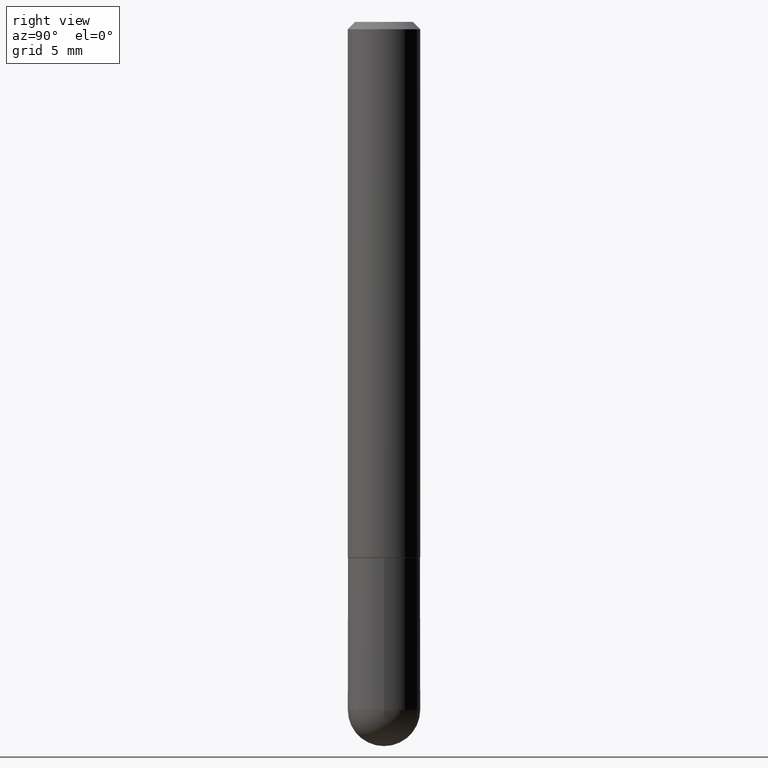
[diagram: clean part render]
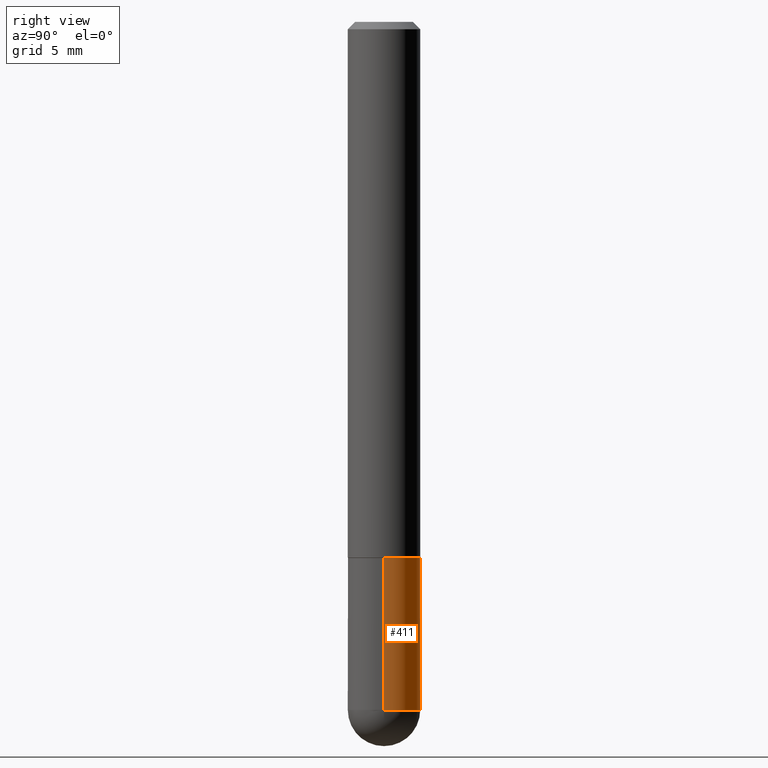
[diagram: same view with one face highlighted and labeled with its STEP entity id]
A machine part, right view. The second image highlights one B-rep face of the part: STEP entity #411.
In plain terms, the highlighted cylindrical surface (edge-blend (fillet) strip) has radius 2.5006 mm, axis along (-0, 0, 1).
Its self-contained STEP definition (entity closure, byte-faithful):
#11 = ORIENTED_EDGE ( 'NONE', *, *, #400, .F. ) ;
#14 = EDGE_CURVE ( 'NONE', #80, #296, #319, .T. ) ;
#23 = DIRECTION ( 'NONE',  ( -2.445468806185136877E-29, 3.491481338843145188E-15, 1.000000000000000000 ) ) ;
#28 = CARTESIAN_POINT ( 'NONE',  ( 0.09844999999999999585, -5.773513541911023795E-15, -1.456700000000000106 ) ) ;
#30 = AXIS2_PLACEMENT_3D ( 'NONE', #179, #82, #303 ) ;
#32 = DIRECTION ( 'NONE',  ( -2.445468806185136597E-29, 3.491481338843145583E-15, 1.000000000000000000 ) ) ;
#35 = CIRCLE ( 'NONE', #30, 0.09845000000000000973 ) ;
#48 = CARTESIAN_POINT ( 'NONE',  ( 6.874726756182577224E-16, 0.09844999999999333451, -1.870050000000000434 ) ) ;
#49 = ORIENTED_EDGE ( 'NONE', *, *, #352, .T. ) ;
#53 = AXIS2_PLACEMENT_3D ( 'NONE', #204, #32, #164 ) ;
#59 = VERTEX_POINT ( 'NONE', #28 ) ;
#62 = VECTOR ( 'NONE', #379, 39.37007874015748143 ) ;
#73 = ORIENTED_EDGE ( 'NONE', *, *, #255, .F. ) ;
#75 = CARTESIAN_POINT ( 'NONE',  ( 3.562314409969888915E-29, -5.086040866292811234E-15, -1.456700000000000106 ) ) ;
#80 = VERTEX_POINT ( 'NONE', #118 ) ;
#82 = DIRECTION ( 'NONE',  ( -2.445468806185136597E-29, 3.491481338843145583E-15, 1.000000000000000000 ) ) ;
#90 = DIRECTION ( 'NONE',  ( -2.445468806185136597E-29, 3.491481338843145583E-15, 1.000000000000000000 ) ) ;
#94 = EDGE_CURVE ( 'NONE', #237, #292, #342, .T. ) ;
#98 = CARTESIAN_POINT ( 'NONE',  ( -0.09845000000000000973, 6.995293233558187021E-16, -4.842691596355954742E-30 ) ) ;
#106 = ORIENTED_EDGE ( 'NONE', *, *, #14, .T. ) ;
#108 = FACE_OUTER_BOUND ( 'NONE', #161, .T. ) ;
#112 = LINE ( 'NONE', #307, #225 ) ;
#118 = CARTESIAN_POINT ( 'NONE',  ( 0.09845000000000000973, -6.495115447616432074E-15, -1.870050000000000212 ) ) ;
#120 = CARTESIAN_POINT ( 'NONE',  ( -0.09845000000000000973, -5.108113448642400615E-15, -1.870050000000000212 ) ) ;
#161 = EDGE_LOOP ( 'NONE', ( #49, #202, #11, #73, #106 ) ) ;
#164 = DIRECTION ( 'NONE',  ( 1.000000000000000000, -6.982962677686266711E-15, 4.876176775795935793E-29 ) ) ;
#179 = CARTESIAN_POINT ( 'NONE',  ( 4.573148941006514739E-29, -6.529244677703625427E-15, -1.870050000000000212 ) ) ;
#181 = AXIS2_PLACEMENT_3D ( 'NONE', #186, #90, #220 ) ;
#186 = CARTESIAN_POINT ( 'NONE',  ( 4.573148941006514739E-29, -6.529244677703625427E-15, -1.870050000000000212 ) ) ;
#202 = ORIENTED_EDGE ( 'NONE', *, *, #94, .T. ) ;
#204 = CARTESIAN_POINT ( 'NONE',  ( 0.000000000000000000, 0.000000000000000000, 0.000000000000000000 ) ) ;
#220 = DIRECTION ( 'NONE',  ( 1.000000000000000000, -6.982962677686265133E-15, 0.000000000000000000 ) ) ;
#223 = CIRCLE ( 'NONE', #311, 0.09844999999999999585 ) ;
#225 = VECTOR ( 'NONE', #23, 39.37007874015748143 ) ;
#235 = DIRECTION ( 'NONE',  ( -2.445468806185136597E-29, 3.491481338843145583E-15, 1.000000000000000000 ) ) ;
#237 = VERTEX_POINT ( 'NONE', #120 ) ;
#238 = CYLINDRICAL_SURFACE ( 'NONE', #53, 0.09845000000000000973 ) ;
#255 = EDGE_CURVE ( 'NONE', #80, #59, #112, .T. ) ;
#266 = DIRECTION ( 'NONE',  ( 1.000000000000000000, -6.982962677686265922E-15, 0.000000000000000000 ) ) ;
#292 = VERTEX_POINT ( 'NONE', #368 ) ;
#296 = VERTEX_POINT ( 'NONE', #48 ) ;
#303 = DIRECTION ( 'NONE',  ( 1.000000000000000000, -6.982962677686265133E-15, 0.000000000000000000 ) ) ;
#307 = CARTESIAN_POINT ( 'NONE',  ( 0.09845000000000000973, -6.874726756182130531E-16, 4.800596035771099214E-30 ) ) ;
#311 = AXIS2_PLACEMENT_3D ( 'NONE', #75, #235, #266 ) ;
#319 = CIRCLE ( 'NONE', #181, 0.09845000000000000973 ) ;
#342 = LINE ( 'NONE', #98, #62 ) ;
#352 = EDGE_CURVE ( 'NONE', #296, #237, #35, .T. ) ;
#368 = CARTESIAN_POINT ( 'NONE',  ( -0.09844999999999999585, -5.108113448642399037E-15, -1.456700000000000106 ) ) ;
#379 = DIRECTION ( 'NONE',  ( -2.445468806185136877E-29, 3.491481338843145188E-15, 1.000000000000000000 ) ) ;
#400 = EDGE_CURVE ( 'NONE', #59, #292, #223, .T. ) ;
#411 = ADVANCED_FACE ( 'NONE', ( #108 ), #238, .T. ) ;